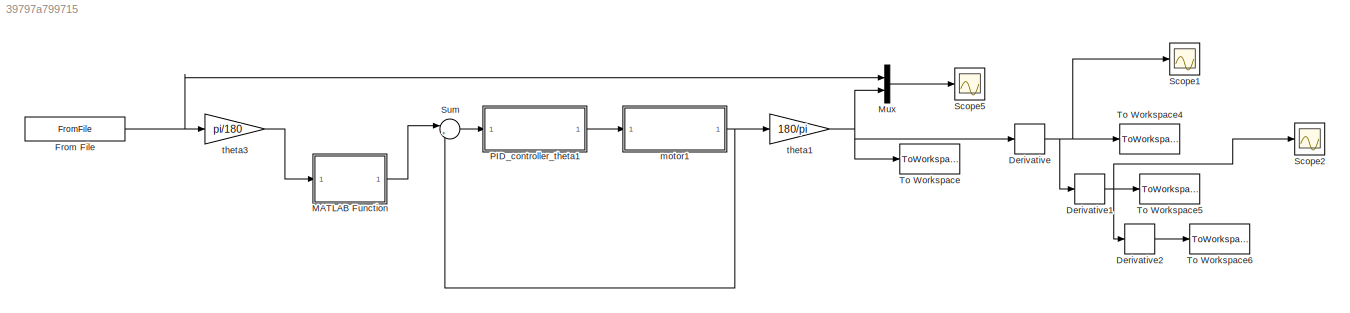
MODEL slx_39797a799715
KIND model
CONFIG AbsTol = auto
CONFIG EnableMultiTasking = off
CONFIG FixedStep = 0.23788
CONFIG MaxStep = auto
CONFIG MinStep = auto
CONFIG RelTol = 1e-3
CONFIG SampleTimeConstraint = Unconstrained
CONFIG SolverName = ode5
CONFIG StartTime = 0.0
CONFIG StopTime = 9.5151
BLOCK [Derivative] Derivative
BLOCK [Derivative] Derivative1
BLOCK [Derivative] Derivative2
BLOCK [FromFile] From File
  FileName = theta1set.mat
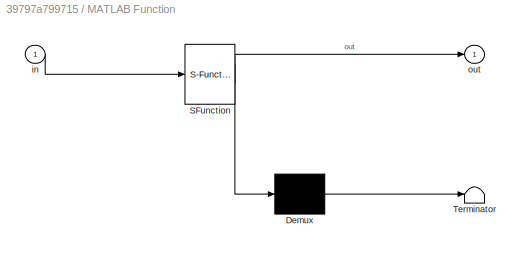
BLOCK [SubSystem] MATLAB Function
  ErrorFcn = Stateflow.Translate.translate
  PermitHierarchicalResolution = ExplicitOnly
  Ports = [1, 1]
  RequestExecContextInheritance = off
  SFBlockType = MATLAB Function
  TreatAsAtomicUnit = on
BLOCK [Demux] MATLAB Function/ Demux 
  Outputs = 1
  Ports = [1, 1]
BLOCK [S-Function] MATLAB Function/ SFunction 
  EnableBusSupport = on
  FunctionName = sf_sfun
  PortCounts = [1 2]
  Ports = [1, 2]
  SFcnIsStateOwnerBlock = off
  SFunctionDeploymentMode = off
  Tag = Stateflow S-Function 2
BLOCK [Terminator] MATLAB Function/ Terminator 
BLOCK [Inport] MATLAB Function/in
BLOCK [Outport] MATLAB Function/out
  VectorParamsAs1DForOutWhenUnconnected = off
BLOCK [Mux] Mux
  DisplayOption = bar
  Inputs = 2
  Ports = [2, 1]
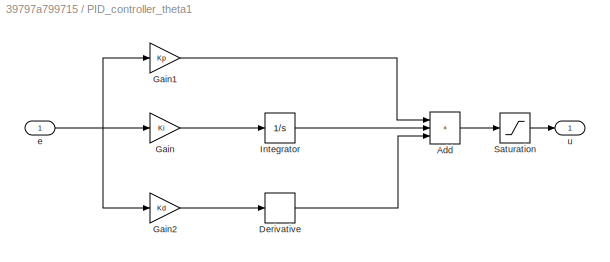
BLOCK [SubSystem] PID_controller_theta1
  Ports = [1, 1]
  RequestExecContextInheritance = off
BLOCK [Sum] PID_controller_theta1/Add
  IconShape = rectangular
  Inputs = +++
  Ports = [3, 1]
BLOCK [Derivative] PID_controller_theta1/Derivative
BLOCK [Gain] PID_controller_theta1/Gain
  Gain = Ki
BLOCK [Gain] PID_controller_theta1/Gain1
  Gain = Kp
BLOCK [Gain] PID_controller_theta1/Gain2
  Gain = Kd
BLOCK [Integrator] PID_controller_theta1/Integrator
  Ports = [1, 1]
BLOCK [Saturate] PID_controller_theta1/Saturation
  LowerLimit = -300
  UpperLimit = 300
BLOCK [Inport] PID_controller_theta1/e
BLOCK [Outport] PID_controller_theta1/u
  VectorParamsAs1DForOutWhenUnconnected = off
BLOCK [Scope] Scope1
  Floating = off
  NumInputPorts = 1
  Ports = [1]
  ScopeSpecificationString = Simulink.scopes.TimeScopeBlockCfg('CurrentConfiguration', extmgr.ConfigurationSet(extmgr.Configuration('Core','General UI',true),extmgr.Configuration('Core','Source UI',true),extmgr.Configuration('Sources','WiredSimulink',true,'DataLoggingVariableName','ScopeData1'),extmgr.Configuration('Visuals','Time Domain',true,'SerializedDisplays',{struct('MinYLimReal','-1.29145','MaxYLimReal','11.62307','YLa...<+1450ch>
BLOCK [Scope] Scope2
  Floating = off
  NumInputPorts = 1
  Ports = [1]
  ScopeSpecificationString = Simulink.scopes.TimeScopeBlockCfg('CurrentConfiguration', extmgr.ConfigurationSet(extmgr.Configuration('Core','General UI',true),extmgr.Configuration('Core','Source UI',true),extmgr.Configuration('Sources','WiredSimulink',true,'DataLoggingVariableName','ScopeData2'),extmgr.Configuration('Visuals','Time Domain',true,'SerializedDisplays',{struct('MinYLimReal','-11.68458','MaxYLimReal','11.90862','YL...<+1453ch>
BLOCK [Scope] Scope5
  Floating = off
  NumInputPorts = 1
  Ports = [1]
  ScopeSpecificationString = Simulink.scopes.TimeScopeBlockCfg('CurrentConfiguration', extmgr.ConfigurationSet(extmgr.Configuration('Core','General UI',true),extmgr.Configuration('Core','Source UI',true),extmgr.Configuration('Sources','WiredSimulink',true,'DataLoggingVariableName','ScopeData1'),extmgr.Configuration('Visuals','Time Domain',true,'SerializedDisplays',{struct('MinYLimReal','-14.69857','MaxYLimReal','132.28714','Y...<+1464ch>
BLOCK [Sum] Sum
  Inputs = |+-
  Ports = [2, 1]
BLOCK [ToWorkspace] To Workspace
  FixptAsFi = on
  MaxDataPoints = inf
  Ports = [1]
  SampleTime = -1
  VariableName = q_theta1out
BLOCK [ToWorkspace] To Workspace4
  FixptAsFi = on
  MaxDataPoints = inf
  Ports = [1]
  SampleTime = -1
  VariableName = v_theta1out
BLOCK [ToWorkspace] To Workspace5
  FixptAsFi = on
  MaxDataPoints = inf
  Ports = [1]
  SampleTime = -1
  VariableName = a_theta1out
BLOCK [ToWorkspace] To Workspace6
  FixptAsFi = on
  MaxDataPoints = inf
  Ports = [1]
  SampleTime = -1
  VariableName = j_theta1out
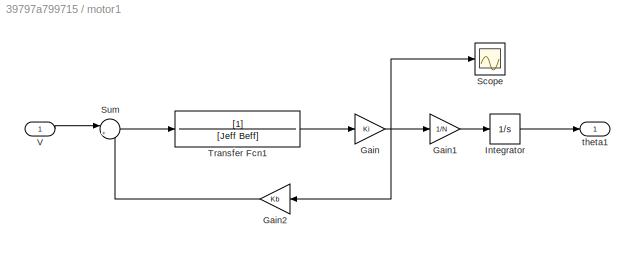
BLOCK [SubSystem] motor1
  Ports = [1, 1]
  RequestExecContextInheritance = off
BLOCK [Gain] motor1/Gain
  Gain = Ki
BLOCK [Gain] motor1/Gain1
  Gain = 1/N
BLOCK [Gain] motor1/Gain2
  Gain = Kb
BLOCK [Integrator] motor1/Integrator
  Ports = [1, 1]
BLOCK [Scope] motor1/Scope
  Floating = off
  NumInputPorts = 1
  Ports = [1]
  ScopeSpecificationString = Simulink.scopes.TimeScopeBlockCfg('CurrentConfiguration', extmgr.ConfigurationSet(extmgr.Configuration('Core','General UI',true),extmgr.Configuration('Core','Source UI',true),extmgr.Configuration('Sources','WiredSimulink',true,'DataLoggingVariableName','ScopeData2'),extmgr.Configuration('Visuals','Time Domain',true,'SerializedDisplays',{struct('MinYLimReal','-142.39063','MaxYLimReal','35.76049','Y...<+1375ch>
BLOCK [Sum] motor1/Sum
  Inputs = |+-
  Ports = [2, 1]
BLOCK [TransferFcn] motor1/Transfer Fcn1
  Denominator = [Jeff Beff]
BLOCK [Inport] motor1/V
BLOCK [Outport] motor1/theta1
  VectorParamsAs1DForOutWhenUnconnected = off
BLOCK [Gain] theta1
  Gain = 180/pi
BLOCK [Gain] theta3
  Gain = pi/180
NET Derivative1:1 -> Derivative2:1, Scope2:1, To Workspace5:1
LINE Derivative2:1 -> To Workspace6:1
NET Derivative:1 -> Derivative1:1, Scope1:1, To Workspace4:1
NET From File:1 -> Mux:1, theta3:1
LINE MATLAB Function:1 -> Sum:1
LINE Mux:1 -> Scope5:1
LINE PID_controller_theta1/Add:1 -> PID_controller_theta1/Saturation:1
LINE PID_controller_theta1/Derivative:1 -> PID_controller_theta1/Add:3
LINE PID_controller_theta1/Gain1:1 -> PID_controller_theta1/Add:1
LINE PID_controller_theta1/Gain2:1 -> PID_controller_theta1/Derivative:1
LINE PID_controller_theta1/Gain:1 -> PID_controller_theta1/Integrator:1
LINE PID_controller_theta1/Integrator:1 -> PID_controller_theta1/Add:2
LINE PID_controller_theta1/Saturation:1 -> PID_controller_theta1/u:1
NET PID_controller_theta1/e:1 -> PID_controller_theta1/Gain1:1, PID_controller_theta1/Gain2:1, PID_controller_theta1/Gain:1
LINE PID_controller_theta1:1 -> motor1:1
LINE Sum:1 -> PID_controller_theta1:1
LINE motor1/Gain1:1 -> motor1/Integrator:1
LINE motor1/Gain2:1 -> motor1/Sum:2
NET motor1/Gain:1 -> motor1/Gain1:1, motor1/Gain2:1, motor1/Scope:1
LINE motor1/Integrator:1 -> motor1/theta1:1
LINE motor1/Sum:1 -> motor1/Transfer Fcn1:1
LINE motor1/Transfer Fcn1:1 -> motor1/Gain:1
LINE motor1/V:1 -> motor1/Sum:1
NET motor1:1 -> Sum:2, theta1:1
NET theta1:1 -> Derivative:1, Mux:2, To Workspace:1
LINE theta3:1 -> MATLAB Function:1
note: NET lines group one-source signal fan-out (src -> all destinations, sorted); 1:1 wires keep LINE
CHART MATLAB Function states=1 transitions=1
  STATE_LABEL 'eML_blk_kernel()'
  STATE_LABEL 'SCRIPT:\nfunction out = HandleInput(in)\n\nout = in\npersistent pre\nif isempty(pre)\n    pre = 0;\nend\n\nwhile (out - pre > 1.5*pi)\n    out = out - 2*pi;\nend\n\nwhile (out - pre < -1.5*pi)\n    out = out + 2*pi;\nend'
CHART  states=0 transitions=0
